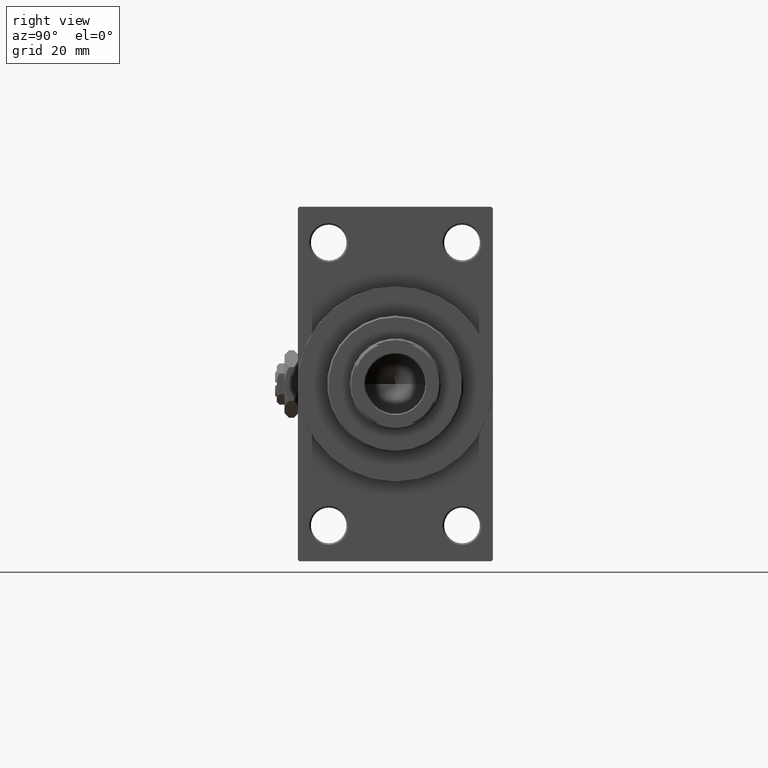
[diagram: clean part render]
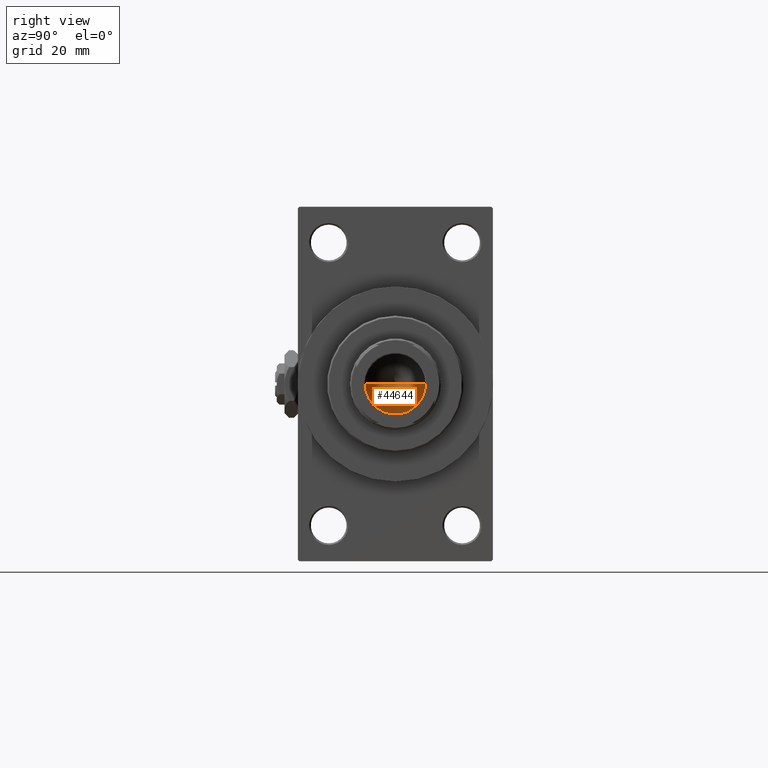
[diagram: same view with one face highlighted and labeled with its STEP entity id]
A machine part, right view. The second image highlights one B-rep face of the part: STEP entity #44644.
In plain terms, the highlighted conical surface has half-angle 59 deg.
Its self-contained STEP definition (entity closure, byte-faithful):
#2703 = DIRECTION ( 'NONE',  ( 0.8571673007021117785, 0.000000000000000000, 0.5150380749100550437 ) ) ;
#6680 = CARTESIAN_POINT ( 'NONE',  ( -9.769621978240258809E-15, 0.000000000000000000, 95.44203927399506426 ) ) ;
#12453 = CARTESIAN_POINT ( 'NONE',  ( 0.000000000000000000, 0.000000000000000000, 101.0000000000000000 ) ) ;
#13547 = AXIS2_PLACEMENT_3D ( 'NONE', #12453, #20194, #19699 ) ;
#13554 = EDGE_CURVE ( 'NONE', #18571, #19096, #18124, .T. ) ;
#14760 = EDGE_CURVE ( 'NONE', #18571, #18265, #32853, .T. ) ;
#15763 = CONICAL_SURFACE ( 'NONE', #30868, 9.249999999999992895, 1.029744258676653423 ) ;
#16713 = CIRCLE ( 'NONE', #13547, 9.249999999999992895 ) ;
#18124 = LINE ( 'NONE', #40559, #25507 ) ;
#18265 = VERTEX_POINT ( 'NONE', #29174 ) ;
#18571 = VERTEX_POINT ( 'NONE', #6680 ) ;
#19096 = VERTEX_POINT ( 'NONE', #34616 ) ;
#19699 = DIRECTION ( 'NONE',  ( 1.000000000000000000, 0.000000000000000000, 0.000000000000000000 ) ) ;
#20194 = DIRECTION ( 'NONE',  ( -0.000000000000000000, -0.000000000000000000, 1.000000000000000000 ) ) ;
#20507 = FACE_OUTER_BOUND ( 'NONE', #28504, .T. ) ;
#22061 = ORIENTED_EDGE ( 'NONE', *, *, #13554, .F. ) ;
#23990 = DIRECTION ( 'NONE',  ( 1.000000000000000000, 0.000000000000000000, 0.000000000000000000 ) ) ;
#25507 = VECTOR ( 'NONE', #44291, 1000.000000000000000 ) ;
#25638 = CARTESIAN_POINT ( 'NONE',  ( 9.249999999999992895, 0.000000000000000000, 101.0000000000000000 ) ) ;
#27729 = CARTESIAN_POINT ( 'NONE',  ( 0.000000000000000000, 0.000000000000000000, 101.0000000000000000 ) ) ;
#28504 = EDGE_LOOP ( 'NONE', ( #22061, #48972, #45676 ) ) ;
#29174 = CARTESIAN_POINT ( 'NONE',  ( 9.249999999999992895, 0.000000000000000000, 101.0000000000000000 ) ) ;
#29370 = EDGE_CURVE ( 'NONE', #18265, #19096, #16713, .T. ) ;
#30868 = AXIS2_PLACEMENT_3D ( 'NONE', #27729, #35449, #23990 ) ;
#32853 = LINE ( 'NONE', #25638, #36684 ) ;
#34616 = CARTESIAN_POINT ( 'NONE',  ( -9.249999999999992895, 1.132798289211300712E-15, 101.0000000000000000 ) ) ;
#35449 = DIRECTION ( 'NONE',  ( -0.000000000000000000, -0.000000000000000000, 1.000000000000000000 ) ) ;
#36684 = VECTOR ( 'NONE', #2703, 1000.000000000000000 ) ;
#40559 = CARTESIAN_POINT ( 'NONE',  ( -9.249999999999992895, 1.132798289211300712E-15, 101.0000000000000000 ) ) ;
#44291 = DIRECTION ( 'NONE',  ( -0.8571673007021117785, 1.049727191138617956E-16, 0.5150380749100550437 ) ) ;
#44644 = ADVANCED_FACE ( 'NONE', ( #20507 ), #15763, .F. ) ;
#45676 = ORIENTED_EDGE ( 'NONE', *, *, #29370, .T. ) ;
#48972 = ORIENTED_EDGE ( 'NONE', *, *, #14760, .T. ) ;